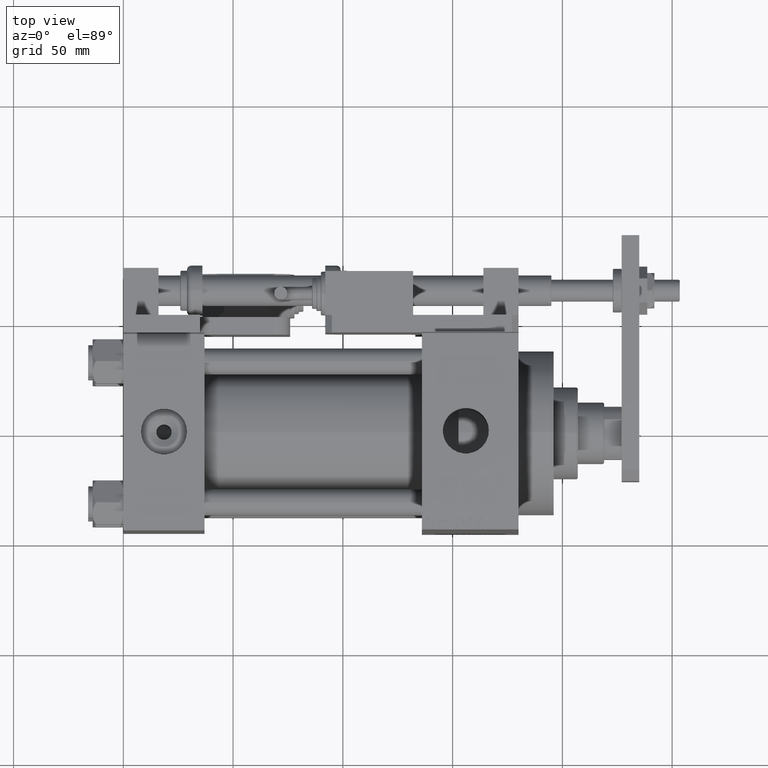
[diagram: clean part render]
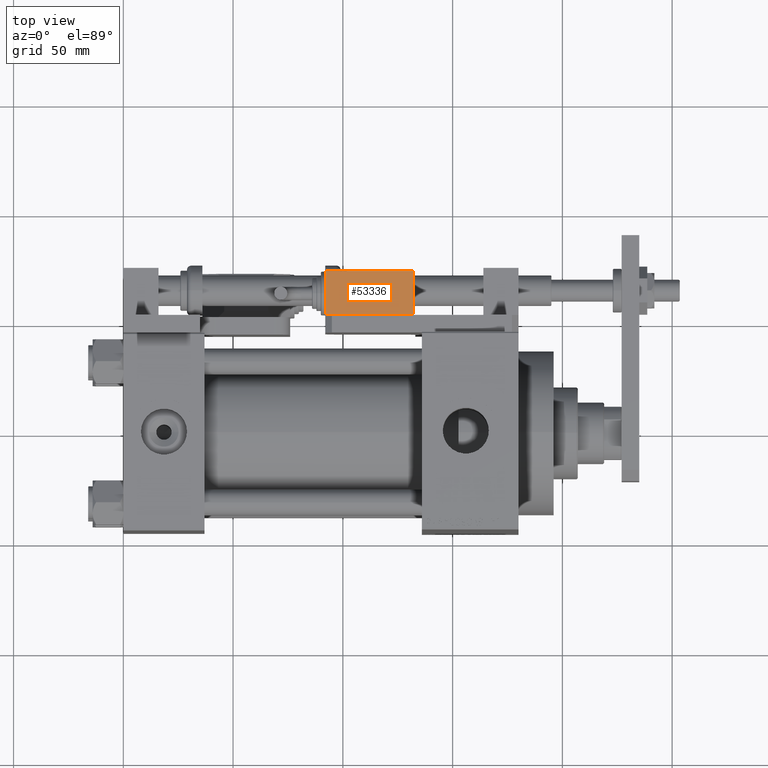
[diagram: same view with one face highlighted and labeled with its STEP entity id]
A machine part, top view. The second image highlights one B-rep face of the part: STEP entity #53336.
In plain terms, the highlighted planar face has unit normal (-0, -0, -1).
Its self-contained STEP definition (entity closure, byte-faithful):
#902 = DIRECTION ( 'NONE',  ( 0.000000000000000000, 1.000000000000000000, 0.000000000000000000 ) ) ;
#1269 = CARTESIAN_POINT ( 'NONE',  ( 20.00000000000005329, -17.49999999999996092, -9.999999999999998224 ) ) ;
#2156 = EDGE_LOOP ( 'NONE', ( #44048, #4027, #31329, #19539 ) ) ;
#4027 = ORIENTED_EDGE ( 'NONE', *, *, #38367, .T. ) ;
#4829 = DIRECTION ( 'NONE',  ( 0.000000000000000000, 0.000000000000000000, 1.000000000000000000 ) ) ;
#4922 = VERTEX_POINT ( 'NONE', #1269 ) ;
#10334 = PLANE ( 'NONE',  #31423 ) ;
#18175 = VERTEX_POINT ( 'NONE', #27795 ) ;
#18511 = CARTESIAN_POINT ( 'NONE',  ( -19.99999999999994316, -17.49999999999996092, -9.999999999999998224 ) ) ;
#18588 = DIRECTION ( 'NONE',  ( -1.000000000000000000, -0.000000000000000000, -0.000000000000000000 ) ) ;
#19539 = ORIENTED_EDGE ( 'NONE', *, *, #19645, .T. ) ;
#19645 = EDGE_CURVE ( 'NONE', #21553, #4922, #36288, .T. ) ;
#20949 = VERTEX_POINT ( 'NONE', #36884 ) ;
#21528 = LINE ( 'NONE', #25973, #48069 ) ;
#21553 = VERTEX_POINT ( 'NONE', #51538 ) ;
#22042 = VECTOR ( 'NONE', #44916, 1000.000000000000000 ) ;
#24412 = VECTOR ( 'NONE', #36952, 1000.000000000000000 ) ;
#25973 = CARTESIAN_POINT ( 'NONE',  ( 20.00000000000005329, -17.49999999999996092, -9.999999999999998224 ) ) ;
#27022 = DIRECTION ( 'NONE',  ( 0.000000000000000000, -0.000000000000000000, 1.000000000000000000 ) ) ;
#27795 = CARTESIAN_POINT ( 'NONE',  ( 20.00000000000005329, -17.49999999999996092, 10.00000000000000000 ) ) ;
#28114 = EDGE_CURVE ( 'NONE', #4922, #18175, #21528, .T. ) ;
#28318 = LINE ( 'NONE', #45286, #24412 ) ;
#31329 = ORIENTED_EDGE ( 'NONE', *, *, #52222, .T. ) ;
#31423 = AXIS2_PLACEMENT_3D ( 'NONE', #39005, #902, #27022 ) ;
#31657 = CARTESIAN_POINT ( 'NONE',  ( -19.99999999999994316, -17.49999999999996092, 10.00000000000000000 ) ) ;
#32834 = VECTOR ( 'NONE', #18588, 1000.000000000000000 ) ;
#35818 = LINE ( 'NONE', #31657, #32834 ) ;
#36288 = LINE ( 'NONE', #18511, #22042 ) ;
#36884 = CARTESIAN_POINT ( 'NONE',  ( -19.99999999999994316, -17.49999999999996092, 10.00000000000000000 ) ) ;
#36952 = DIRECTION ( 'NONE',  ( -0.000000000000000000, -0.000000000000000000, -1.000000000000000000 ) ) ;
#38367 = EDGE_CURVE ( 'NONE', #18175, #20949, #35818, .T. ) ;
#39005 = CARTESIAN_POINT ( 'NONE',  ( 0.000000000000000000, -17.49999999999996092, 0.000000000000000000 ) ) ;
#44048 = ORIENTED_EDGE ( 'NONE', *, *, #28114, .T. ) ;
#44916 = DIRECTION ( 'NONE',  ( 1.000000000000000000, 0.000000000000000000, 0.000000000000000000 ) ) ;
#45286 = CARTESIAN_POINT ( 'NONE',  ( -19.99999999999994316, -17.49999999999996092, -9.999999999999998224 ) ) ;
#48069 = VECTOR ( 'NONE', #4829, 1000.000000000000000 ) ;
#48158 = FACE_OUTER_BOUND ( 'NONE', #2156, .T. ) ;
#51538 = CARTESIAN_POINT ( 'NONE',  ( -19.99999999999994316, -17.49999999999996092, -9.999999999999998224 ) ) ;
#52222 = EDGE_CURVE ( 'NONE', #20949, #21553, #28318, .T. ) ;
#53336 = ADVANCED_FACE ( 'NONE', ( #48158 ), #10334, .F. ) ;